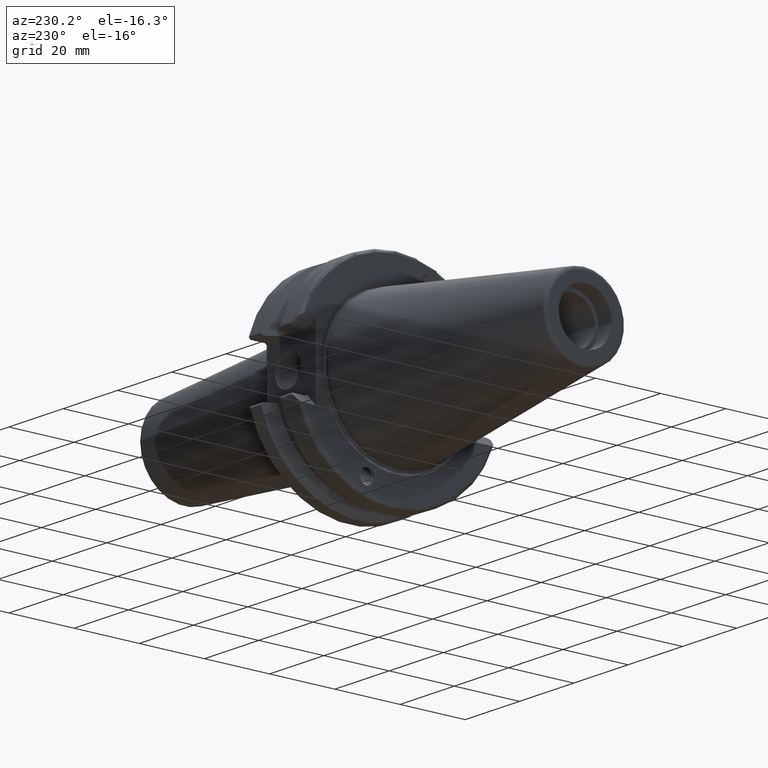
[diagram: clean part render]
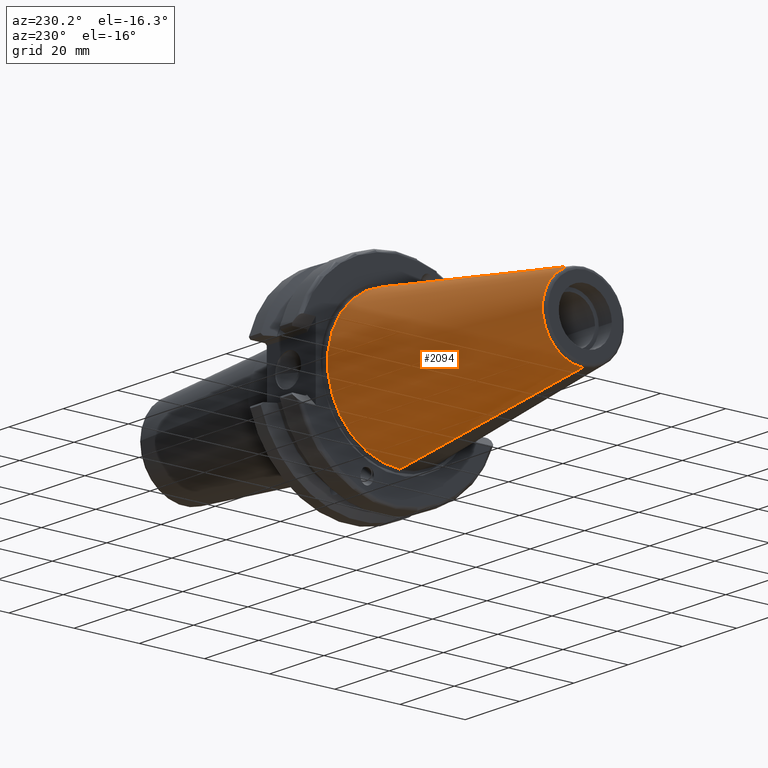
[diagram: same view with one face highlighted and labeled with its STEP entity id]
A machine part, auxiliary view. The second image highlights one B-rep face of the part: STEP entity #2094.
In plain terms, the highlighted conical surface has half-angle 8.297 deg.
Its self-contained STEP definition (entity closure, byte-faithful):
#2=CARTESIAN_POINT('',(-6.739430687632E1,0.E0,0.E0));
#3=DIRECTION('',(-1.E0,0.E0,0.E0));
#4=DIRECTION('',(0.E0,0.E0,1.E0));
#5=AXIS2_PLACEMENT_3D('',#2,#3,#4);
#7=CARTESIAN_POINT('',(0.E0,0.E0,0.E0));
#8=DIRECTION('',(1.E0,0.E0,0.E0));
#9=DIRECTION('',(0.E0,0.E0,-1.E0));
#10=AXIS2_PLACEMENT_3D('',#7,#8,#9);
#970=DIRECTION('',(-9.895329835059E-1,-1.947755452379E-13,-1.443068763221E-1));
#971=VECTOR('',#970,6.810718591466E1);
#972=CARTESIAN_POINT('',(0.E0,0.E0,2.2225E1));
#973=LINE('',#972,#971);
#979=DIRECTION('',(-9.895329835059E-1,1.947888560543E-13,1.443068763221E-1));
#980=VECTOR('',#979,6.810718591466E1);
#981=CARTESIAN_POINT('',(0.E0,0.E0,-2.2225E1));
#982=LINE('',#981,#980);
#1749=CARTESIAN_POINT('',(0.E0,0.E0,-2.2225E1));
#1750=CARTESIAN_POINT('',(0.E0,0.E0,2.2225E1));
#1751=VERTEX_POINT('',#1749);
#1752=VERTEX_POINT('',#1750);
#1833=CARTESIAN_POINT('',(-6.739430687632E1,0.E0,-1.239666474557E1));
#1834=CARTESIAN_POINT('',(-6.739430687632E1,0.E0,1.239666474557E1));
#1835=VERTEX_POINT('',#1833);
#1836=VERTEX_POINT('',#1834);
#2079=CARTESIAN_POINT('',(-3.369715343816E1,0.E0,0.E0));
#2080=DIRECTION('',(1.E0,0.E0,0.E0));
#2081=DIRECTION('',(0.E0,0.E0,1.E0));
#2082=AXIS2_PLACEMENT_3D('',#2079,#2080,#2081);
#2083=CONICAL_SURFACE('',#2082,1.731083237279E1,8.297144E0);
#2085=ORIENTED_EDGE('',*,*,#2084,.T.);
#2087=ORIENTED_EDGE('',*,*,#2086,.F.);
#2089=ORIENTED_EDGE('',*,*,#2088,.T.);
#2091=ORIENTED_EDGE('',*,*,#2090,.T.);
#2092=EDGE_LOOP('',(#2085,#2087,#2089,#2091));
#2093=FACE_OUTER_BOUND('',#2092,.F.);
#2094=ADVANCED_FACE('',(#2093),#2083,.T.);
#6=CIRCLE('',#5,1.239666474557E1);
#11=CIRCLE('',#10,2.2225E1);
#2084=EDGE_CURVE('',#1836,#1835,#6,.T.);
#2086=EDGE_CURVE('',#1751,#1835,#982,.T.);
#2088=EDGE_CURVE('',#1751,#1752,#11,.T.);
#2090=EDGE_CURVE('',#1752,#1836,#973,.T.);